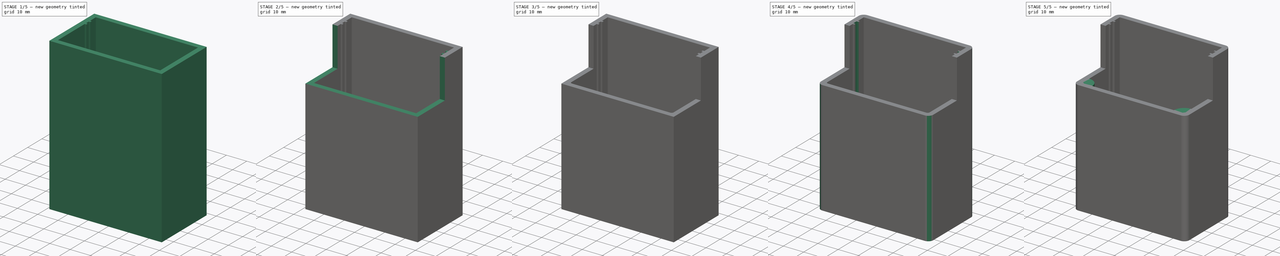
[diagram: build sequence overview — one tinted view per stage of 5, left to right]
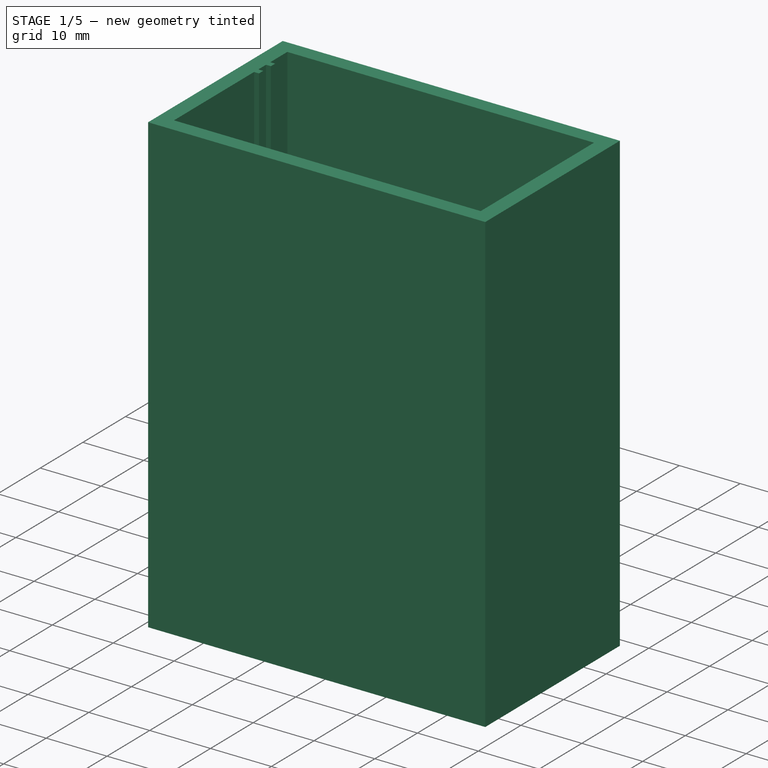
[diagram: stage 1 of 5 — iso view after this stage's code; geometry added in this stage tinted green]
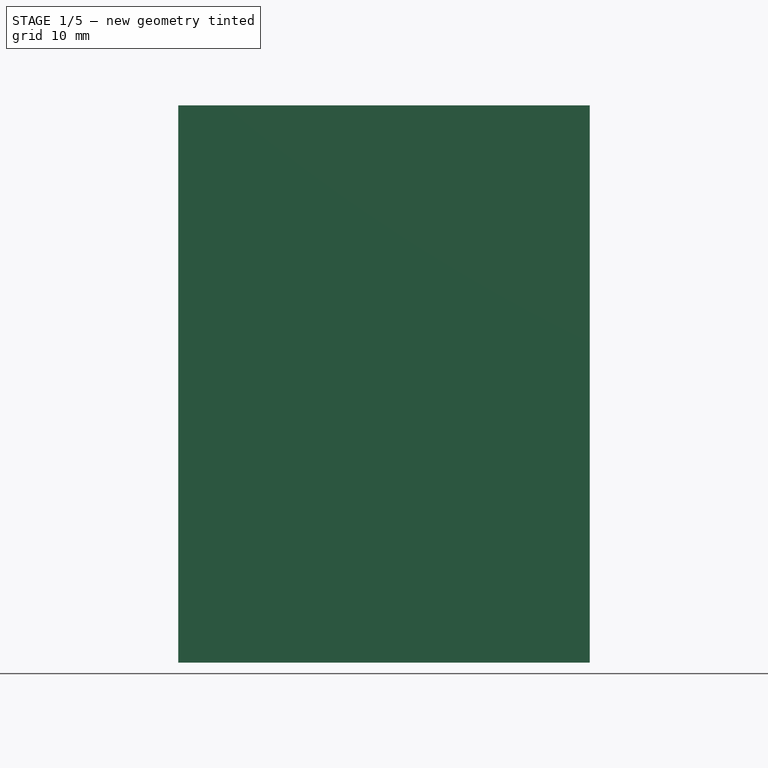
[diagram: stage 1 of 5 — front view after this stage's code; geometry added in this stage tinted green]
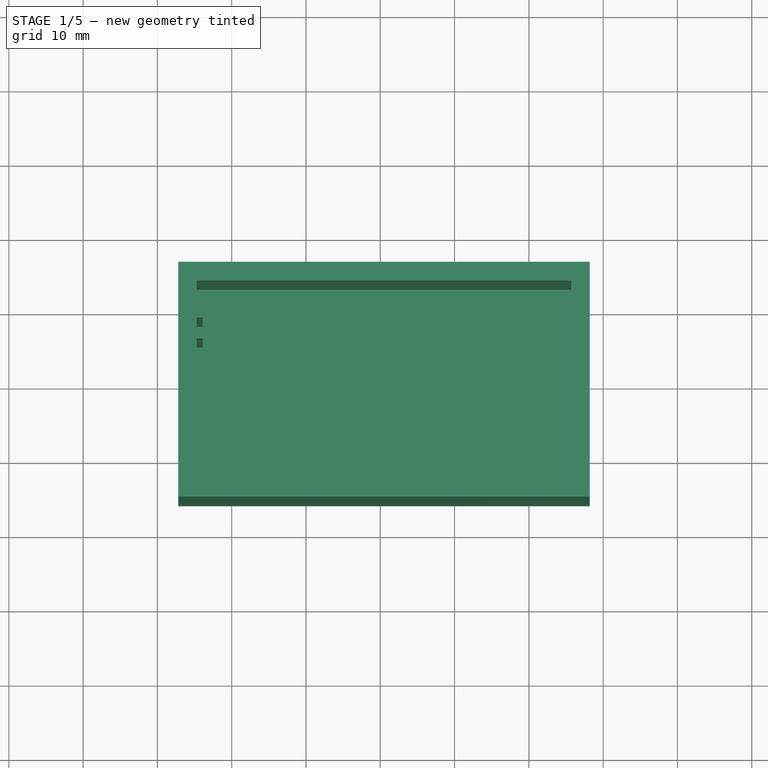
[diagram: stage 1 of 5 — top view after this stage's code; geometry added in this stage tinted green]
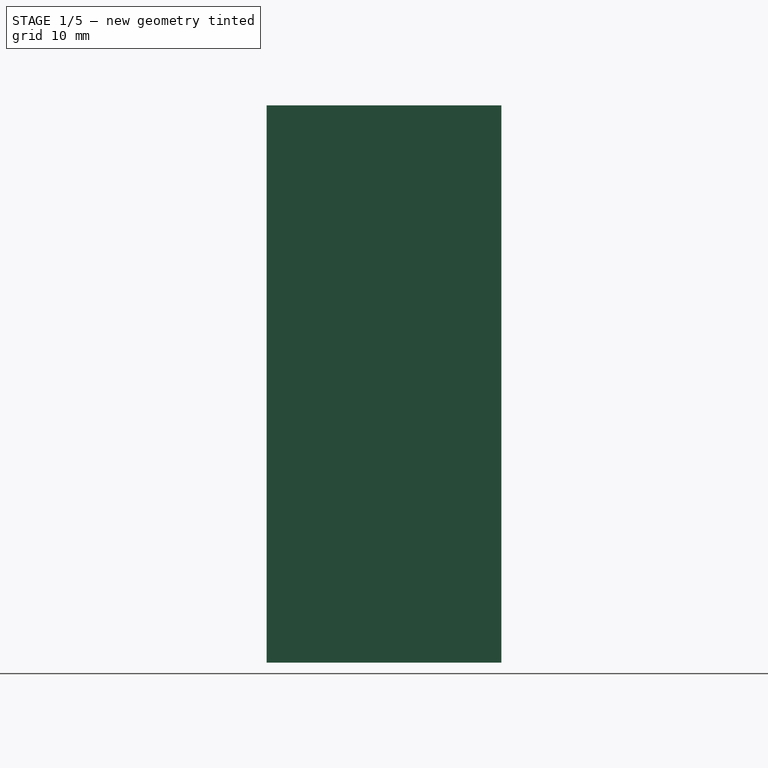
[diagram: stage 1 of 5 — right view after this stage's code; geometry added in this stage tinted green]
FCSTD DOCUMENT  (FreeCAD 0.19R24291 (Git))
Label: debug_box_base_1
License: All rights reserved
LicenseURL: http://en.wikipedia.org/wiki/All_rights_reserved
objects: Sketcher::SketchObject×8, PartDesign::Fillet×5, PartDesign::Pad×4, PartDesign::Pocket×4, PartDesign::Chamfer×2, PartDesign::Body×1
note: 39 computed .brp shape members not serialized (recipe doc carries the construction recipe); baked Part::Feature solids carry a one-line shape summary decoded from their .brp

FEATURE [Sketcher::SketchObject] Sketch
  FullyConstrained = true
  MapMode = 5
  Support = -> [XY_Plane]
  sketch-geometry (4):
    g0: LineSegment StartX=-27.2 StartY=15.8 StartZ=0 EndX=28.2 EndY=15.8 EndZ=0
    g1: LineSegment StartX=28.2 StartY=15.8 StartZ=0 EndX=28.2 EndY=-15.8 EndZ=0
    g2: LineSegment StartX=28.2 StartY=-15.8 StartZ=0 EndX=-27.2 EndY=-15.8 EndZ=0
    g3: LineSegment StartX=-27.2 StartY=-15.8 StartZ=0 EndX=-27.2 EndY=15.8 EndZ=0
  constraints (12):
    c: Coincident(g0,g1)
    c: Coincident(g1,g2)
    c: Coincident(g2,g3)
    c: Coincident(g3,g0)
    c: Horizontal(g0)
    c: Horizontal(g2)
    c: Vertical(g1)
    c: Vertical(g3)
    c: DistanceX(g0,g0) = 55.4
    c: DistanceY(g3,g3) = 31.6
    c: DistanceY(g-1,g0) = 15.8
    c: DistanceX(g0,g-1) = 27.2
FEATURE [PartDesign::Pad] Pad
  Direction = (1,1,1)
  Length = 75
  Length2 = 100
  Profile = -> Sketch
  Type = 0
FEATURE [Sketcher::SketchObject] Sketch001
  ExternalGeometry = -> [Pad]
  FullyConstrained = true
  MapMode = 5
  Placement = pos=(0,0,75) rot=(0,0,1;0rad)
  Support = -> [Pad]
  sketch-geometry (4):
    g0: LineSegment StartX=-24.7 StartY=13.3 StartZ=0 EndX=25.7 EndY=13.3 EndZ=0
    g1: LineSegment StartX=25.7 StartY=13.3 StartZ=0 EndX=25.7 EndY=-13.3 EndZ=0
    g2: LineSegment StartX=25.7 StartY=-13.3 StartZ=0 EndX=-24.7 EndY=-13.3 EndZ=0
    g3: LineSegment StartX=-24.7 StartY=-13.3 StartZ=0 EndX=-24.7 EndY=13.3 EndZ=0
  constraints (12):
    c: Coincident(g0,g1)
    c: Coincident(g1,g2)
    c: Coincident(g2,g3)
    c: Coincident(g3,g0)
    c: Horizontal(g0)
    c: Horizontal(g2)
    c: Vertical(g1)
    c: Vertical(g3)
    c: DistanceX(g-4,g0) = 2.5
    c: DistanceY(g0,g-4) = 2.5
    c: DistanceY(g-3,g1) = 2.5
    c: DistanceX(g1,g-3) = 2.5
FEATURE [PartDesign::Pocket] Pocket
  BaseFeature = -> Pad
  Length = 72.5
  Length2 = 100
  Profile = -> Sketch001
  Type = 0
FEATURE [Sketcher::SketchObject] Sketch002
  ExternalGeometry = -> [Pocket]
  FullyConstrained = true
  MapMode = 5
  Placement = pos=(-24.7,0,0) rot=(0.57735,0.57735,0.57735;2.0944rad)
  Support = -> [Pocket]
  sketch-geometry (8):
    g0: LineSegment StartX=8.3 StartY=0 StartZ=0 EndX=9.3 EndY=0 EndZ=0
    g1: LineSegment StartX=9.3 StartY=0 StartZ=0 EndX=9.3 EndY=75 EndZ=0
    g2: LineSegment StartX=9.3 StartY=75 StartZ=0 EndX=8.3 EndY=75 EndZ=0
    g3: LineSegment StartX=8.3 StartY=75 StartZ=0 EndX=8.3 EndY=0 EndZ=0
    g4: LineSegment StartX=5.5 StartY=0 StartZ=0 EndX=6.5 EndY=0 EndZ=0
    g5: LineSegment StartX=6.5 StartY=0 StartZ=0 EndX=6.5 EndY=75 EndZ=0
    g6: LineSegment StartX=6.5 StartY=75 StartZ=0 EndX=5.5 EndY=75 EndZ=0
    g7: LineSegment StartX=5.5 StartY=75 StartZ=0 EndX=5.5 EndY=0 EndZ=0
  constraints (24):
    c: Coincident(g0,g1)
    c: Coincident(g1,g2)
    c: Coincident(g2,g3)
    c: Coincident(g3,g0)
    c: Horizontal(g0)
    c: Horizontal(g2)
    c: Vertical(g1)
    c: Vertical(g3)
    c: PointOnObject(g0,g-1)
    c: Coincident(g4,g5)
    c: Coincident(g5,g6)
    c: Coincident(g6,g7)
    c: Coincident(g7,g4)
    c: Horizontal(g4)
    c: Horizontal(g6)
    c: Vertical(g5)
    c: Vertical(g7)
    c: PointOnObject(g4,g-1)
    c: DistanceX(g2,g2) = 1
    c: DistanceX(g6,g6) = 1
    c: DistanceX(g2,g-3) = 5
    c: DistanceY(g1,g-3) = 0
    c: DistanceY(g5,g2) = 0
    c: DistanceX(g5,g2) = 1.8
FEATURE [PartDesign::Pad] Pad001
  BaseFeature = -> Pocket
  Direction = (1,1,1)
  Length = 0.8
  Length2 = 100
  Profile = -> Sketch002
  Type = 0
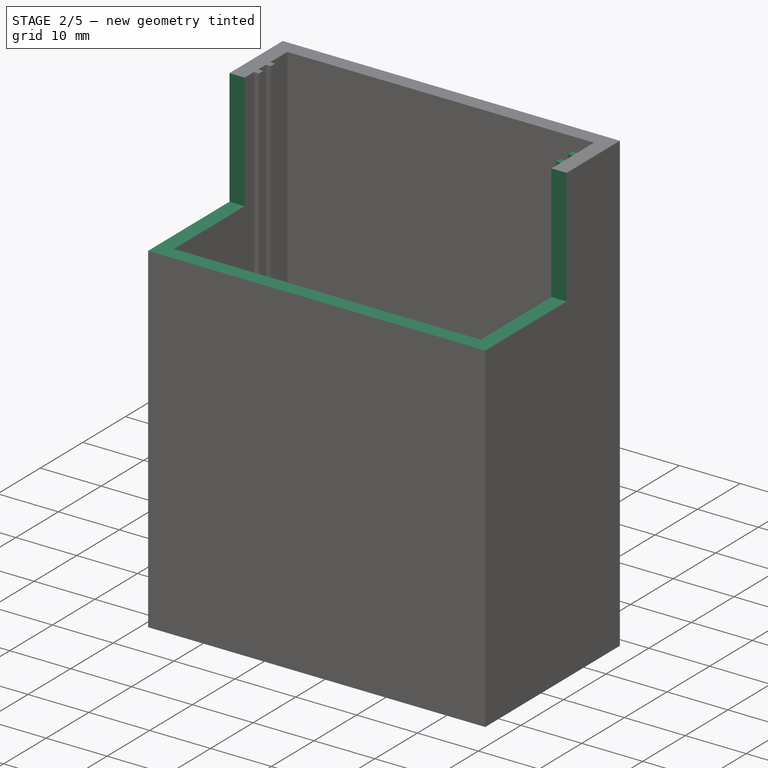
[diagram: stage 2 of 5 — iso view after this stage's code; geometry added in this stage tinted green]
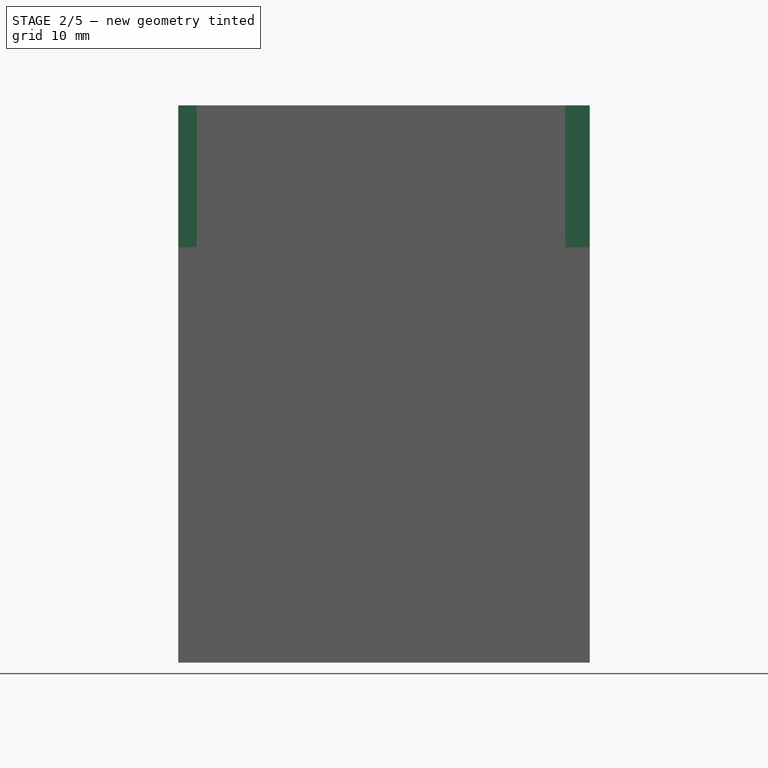
[diagram: stage 2 of 5 — front view after this stage's code; geometry added in this stage tinted green]
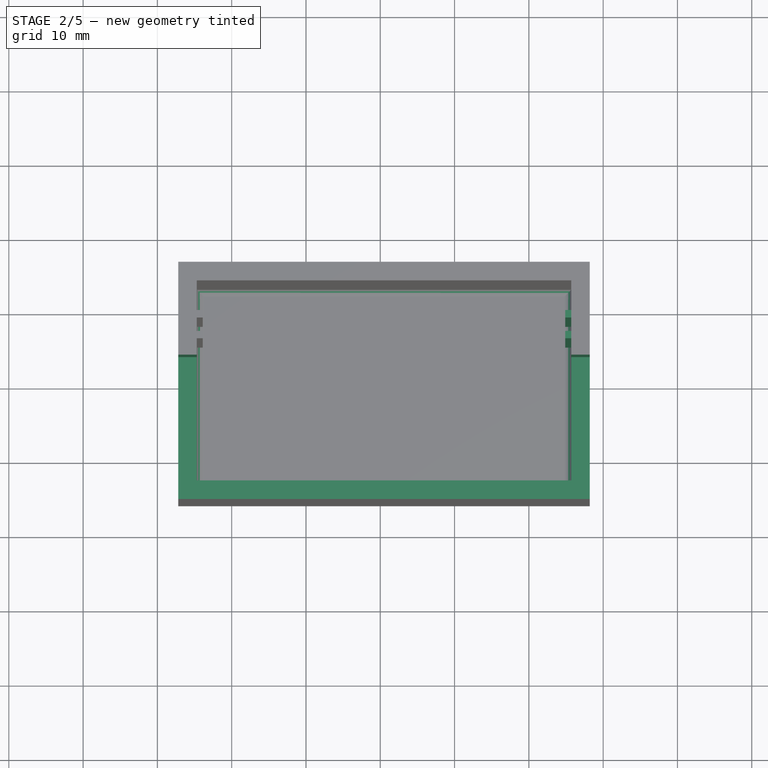
[diagram: stage 2 of 5 — top view after this stage's code; geometry added in this stage tinted green]
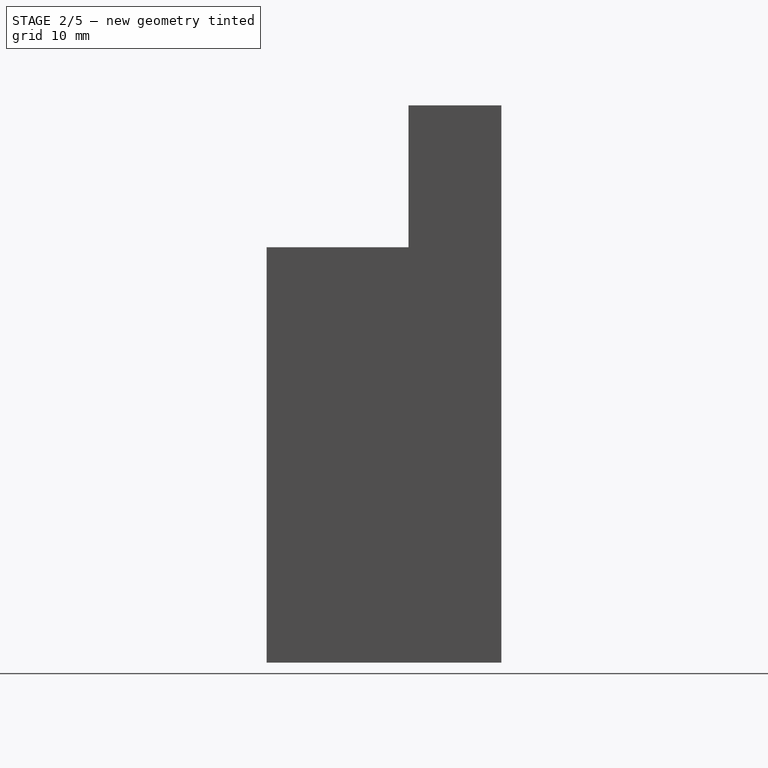
[diagram: stage 2 of 5 — right view after this stage's code; geometry added in this stage tinted green]
FEATURE [Sketcher::SketchObject] Sketch003
  ExternalGeometry = -> [Pad001]
  FullyConstrained = true
  MapMode = 5
  Placement = pos=(25.7,0,0) rot=(0.57735,-0.57735,-0.57735;2.0944rad)
  Support = -> [Pad001]
  sketch-geometry (8):
    g0: LineSegment StartX=-9.3 StartY=2.5 StartZ=0 EndX=-8.3 EndY=2.5 EndZ=0
    g1: LineSegment StartX=-8.3 StartY=2.5 StartZ=0 EndX=-8.3 EndY=75 EndZ=0
    g2: LineSegment StartX=-8.3 StartY=75 StartZ=0 EndX=-9.3 EndY=75 EndZ=0
    g3: LineSegment StartX=-9.3 StartY=75 StartZ=0 EndX=-9.3 EndY=2.5 EndZ=0
    g4: LineSegment StartX=-6.5 StartY=2.5 StartZ=0 EndX=-5.5 EndY=2.5 EndZ=0
    g5: LineSegment StartX=-5.5 StartY=2.5 StartZ=0 EndX=-5.5 EndY=75 EndZ=0
    g6: LineSegment StartX=-5.5 StartY=75 StartZ=0 EndX=-6.5 EndY=75 EndZ=0
    g7: LineSegment StartX=-6.5 StartY=75 StartZ=0 EndX=-6.5 EndY=2.5 EndZ=0
  constraints (24):
    c: Coincident(g0,g1)
    c: Coincident(g1,g2)
    c: Coincident(g2,g3)
    c: Coincident(g3,g0)
    c: Horizontal(g0)
    c: Horizontal(g2)
    c: Vertical(g1)
    c: Vertical(g3)
    c: Coincident(g4,g5)
    c: Coincident(g5,g6)
    c: Coincident(g6,g7)
    c: Coincident(g7,g4)
    c: Horizontal(g4)
    c: Horizontal(g6)
    c: Vertical(g5)
    c: Vertical(g7)
    c: DistanceY(g-3,g0) = 0
    c: DistanceY(g-3,g4) = 0
    c: DistanceX(g0,g0) = 1
    c: DistanceX(g4,g4) = 1
    c: DistanceY(g2,g-4) = 0
    c: DistanceY(g6,g-4) = 0
    c: DistanceX(g-4,g1) = 5
    c: DistanceX(g1,g6) = 1.8
FEATURE [PartDesign::Pad] Pad002
  BaseFeature = -> Pad001
  Direction = (1,1,1)
  Length = 0.8
  Length2 = 100
  Profile = -> Sketch003
  Type = 0
FEATURE [Sketcher::SketchObject] Sketch004
  ExternalGeometry = -> [Pad002]
  FullyConstrained = false
  MapMode = 5
  Placement = pos=(28.2,0,0) rot=(0.57735,0.57735,0.57735;2.0944rad)
  Support = -> [Pad002]
  sketch-geometry (4):
    g0: LineSegment StartX=-15.8 StartY=55.9064 StartZ=0 EndX=3.3 EndY=55.9064 EndZ=0
    g1: LineSegment StartX=3.3 StartY=55.9064 StartZ=0 EndX=3.3 EndY=75 EndZ=0
    g2: LineSegment StartX=3.3 StartY=75 StartZ=0 EndX=-15.8 EndY=75 EndZ=0
    g3: LineSegment StartX=-15.8 StartY=75 StartZ=0 EndX=-15.8 EndY=55.9064 EndZ=0
  constraints (11):
    c: Coincident(g0,g1)
    c: Coincident(g1,g2)
    c: Coincident(g2,g3)
    c: Coincident(g3,g0)
    c: Horizontal(g0)
    c: Horizontal(g2)
    c: Vertical(g1)
    c: Vertical(g3)
    c: DistanceY(g1,g-4) = 0
    c: DistanceX(g1,g-4) = 12.5
    c: DistanceX(g-3,g2) = 0
FEATURE [PartDesign::Pocket] Pocket001
  BaseFeature = -> Pad002
  Length = 56
  Length2 = 100
  Profile = -> Sketch004
  Type = 0
FEATURE [PartDesign::Fillet] Fillet
  Base = -> Pocket001 [Edge63,Edge61,Edge58]
  BaseFeature = -> Pocket001
  Radius = 1
  SupportTransform = false
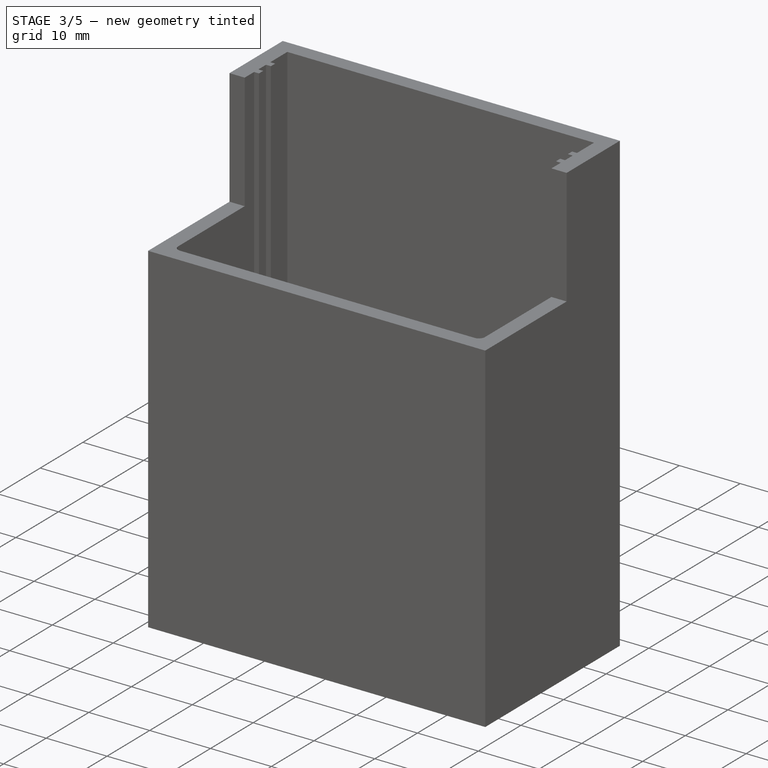
[diagram: stage 3 of 5 — iso view after this stage's code; geometry added in this stage tinted green]
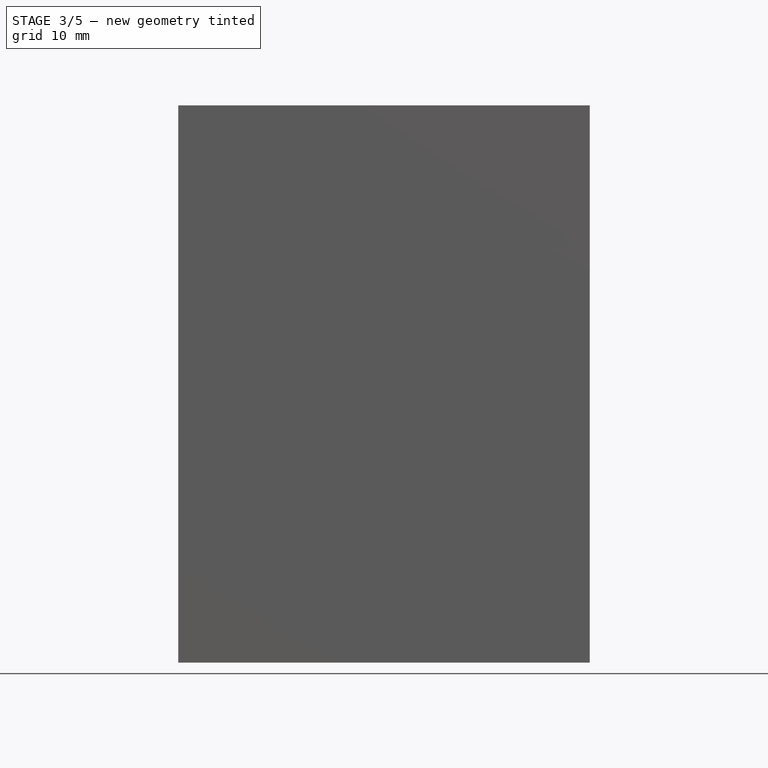
[diagram: stage 3 of 5 — front view after this stage's code; geometry added in this stage tinted green]
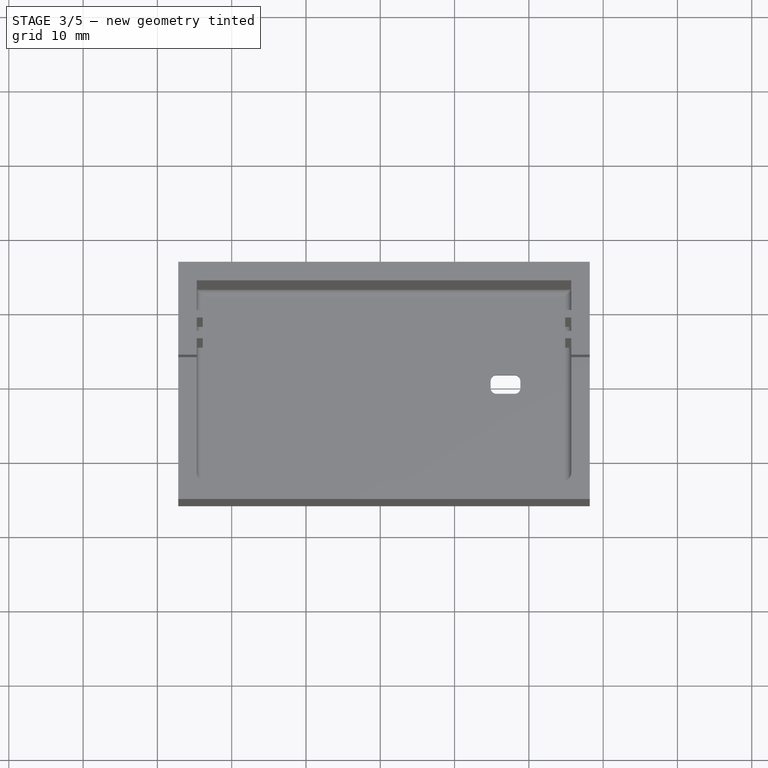
[diagram: stage 3 of 5 — top view after this stage's code; geometry added in this stage tinted green]
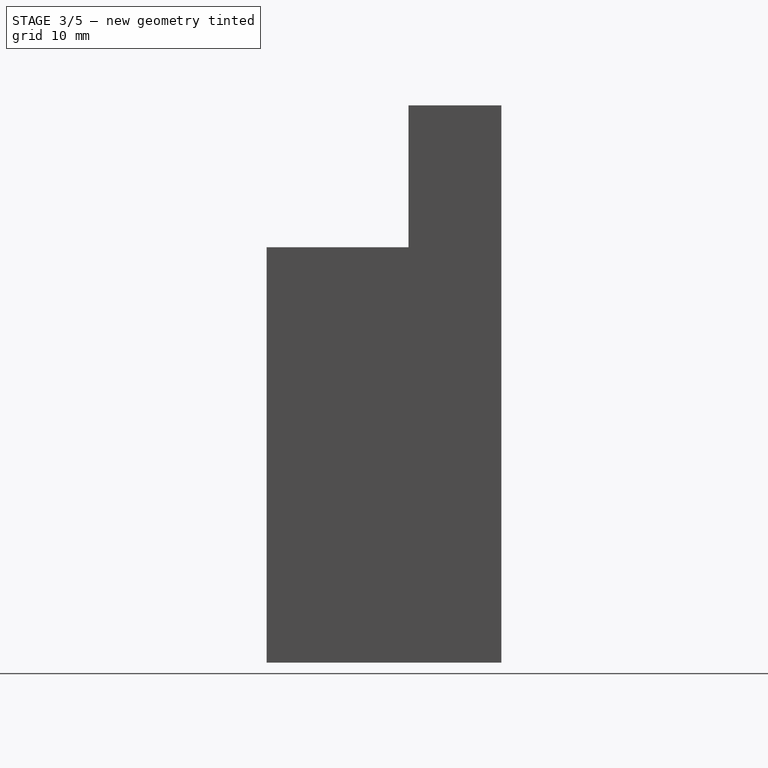
[diagram: stage 3 of 5 — right view after this stage's code; geometry added in this stage tinted green]
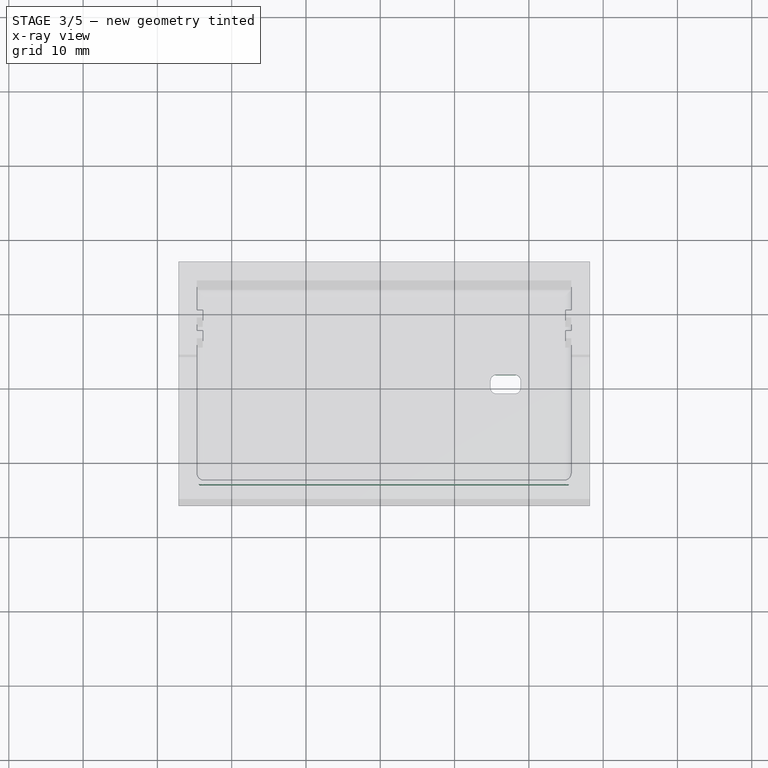
[diagram: stage 3 of 5 — x-ray composite at the top view; earlier geometry ghosted, this stage's added geometry solid]
FEATURE [PartDesign::Fillet] Fillet001
  Base = -> Fillet [Edge36]
  BaseFeature = -> Fillet
  Radius = 1
  SupportTransform = false
FEATURE [Sketcher::SketchObject] Sketch005
  ExternalGeometry = -> [Fillet001]
  FullyConstrained = false
  MapMode = 5
  Placement = pos=(0,0,0) rot=(1,0,0;3.14159rad)
  Support = -> [Fillet001]
  sketch-geometry (4):
    g0: LineSegment StartX=14.8587 StartY=0.7 StartZ=0 EndX=18.8587 EndY=0.7 EndZ=0
    g1: LineSegment StartX=18.8587 StartY=0.7 StartZ=0 EndX=18.8587 EndY=-1.8 EndZ=0
    g2: LineSegment StartX=18.8587 StartY=-1.8 StartZ=0 EndX=14.8587 EndY=-1.8 EndZ=0
    g3: LineSegment StartX=14.8587 StartY=-1.8 StartZ=0 EndX=14.8587 EndY=0.7 EndZ=0
  constraints (11):
    c: Coincident(g0,g1)
    c: Coincident(g1,g2)
    c: Coincident(g2,g3)
    c: Coincident(g3,g0)
    c: Horizontal(g2)
    c: Vertical(g1)
    c: Vertical(g3)
    c: DistanceY(g-3,g1) = 14
    c: Horizontal(g0)
    c: DistanceY(g1,g1) = 2.5
    c: DistanceX(g0,g0) = 4
FEATURE [PartDesign::Pocket] Pocket002
  BaseFeature = -> Fillet001
  Length = 4
  Length2 = 100
  Profile = -> Sketch005
  Type = 0
FEATURE [PartDesign::Fillet] Fillet002
  Base = -> Pocket002 [Edge110,Edge112,Edge107,Edge108]
  BaseFeature = -> Pocket002
  Radius = 0.75
  SupportTransform = false
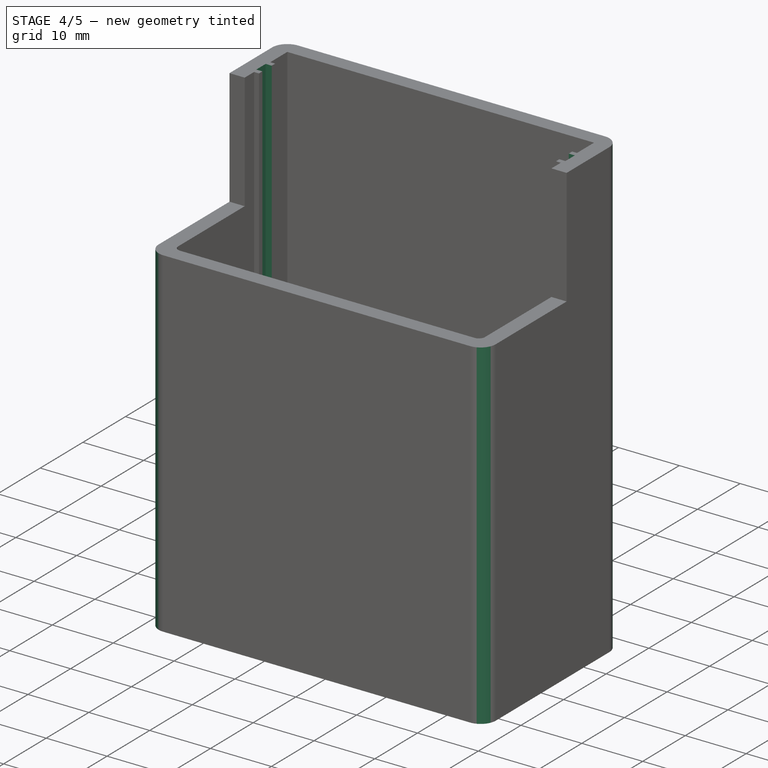
[diagram: stage 4 of 5 — iso view after this stage's code; geometry added in this stage tinted green]
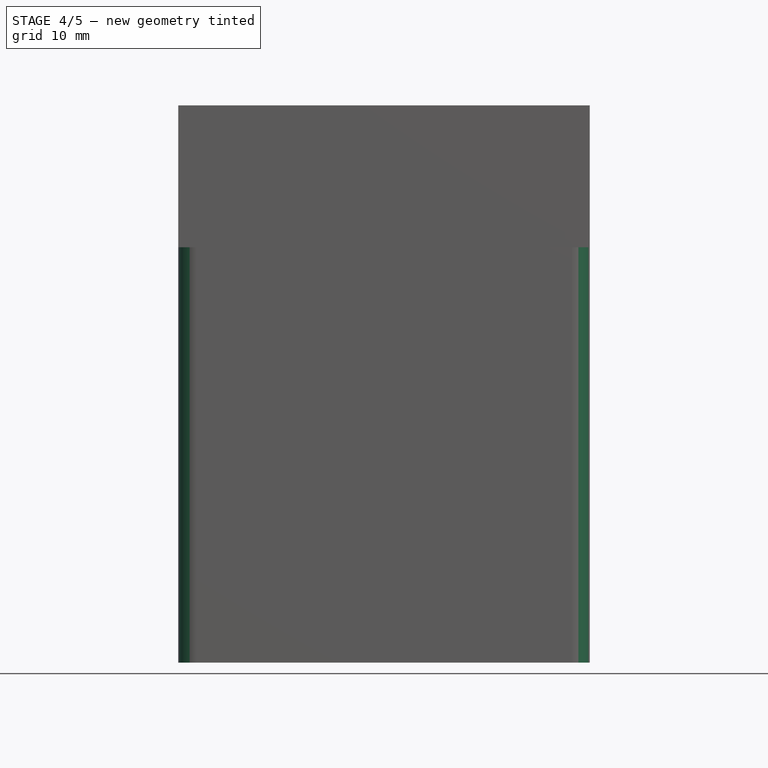
[diagram: stage 4 of 5 — front view after this stage's code; geometry added in this stage tinted green]
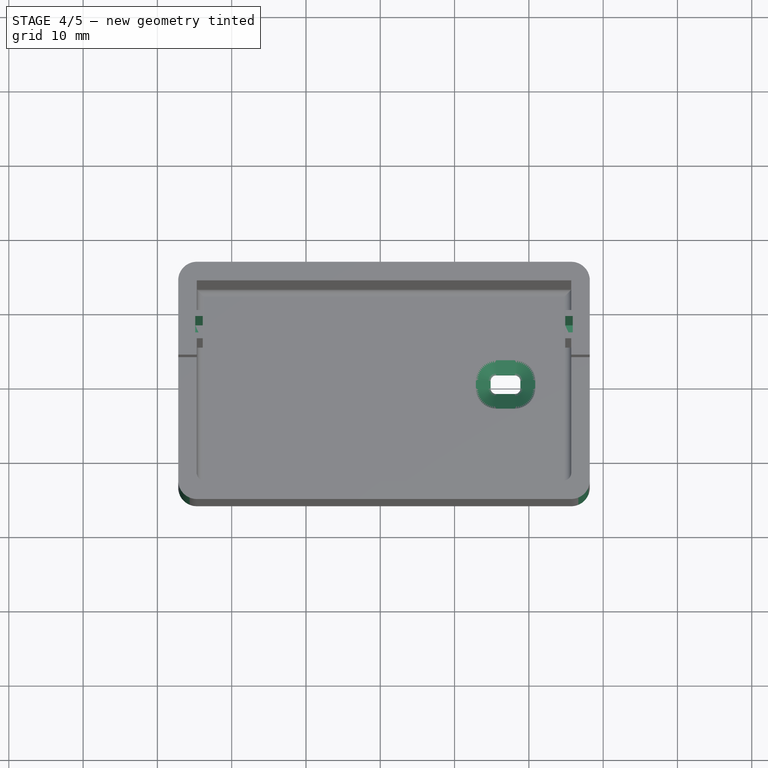
[diagram: stage 4 of 5 — top view after this stage's code; geometry added in this stage tinted green]
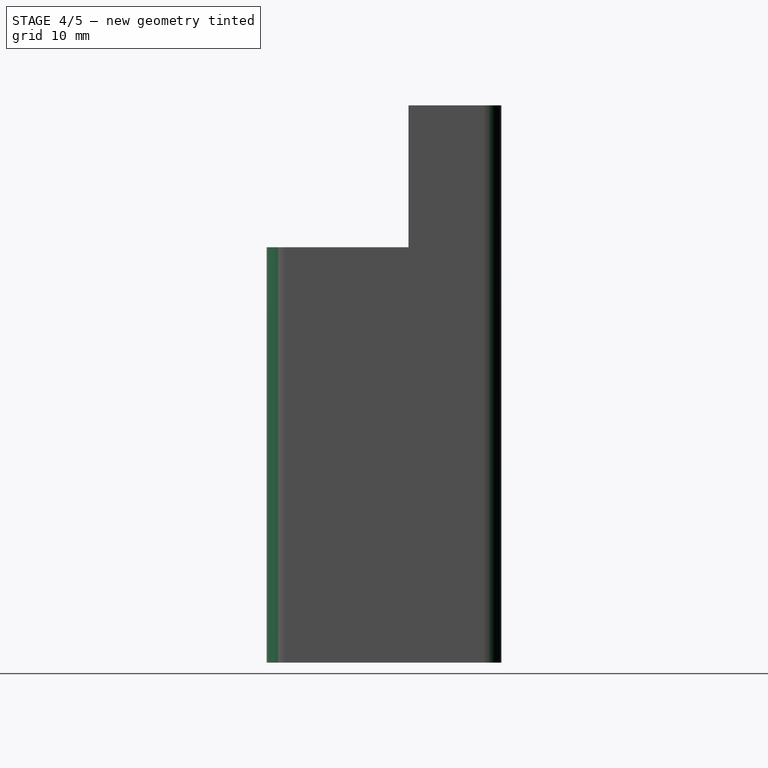
[diagram: stage 4 of 5 — right view after this stage's code; geometry added in this stage tinted green]
FEATURE [PartDesign::Chamfer] Chamfer
  Angle = 45
  Base = -> Fillet002 [Edge4]
  BaseFeature = -> Fillet002
  ChamferType = 0
  FlipDirection = false
  Size = 2
  Size2 = 1
  SupportTransform = false
FEATURE [PartDesign::Fillet] Fillet003
  Base = -> Chamfer [Edge153,Edge151,Edge154,Edge152]
  BaseFeature = -> Chamfer
  Radius = 2.5
  SupportTransform = false
FEATURE [Sketcher::SketchObject] Sketch006
  ExternalGeometry = -> [Fillet003]
  FullyConstrained = true
  MapMode = 5
  Placement = pos=(0,0,75) rot=(0,0,1;0rad)
  Support = -> [Fillet003]
  sketch-geometry (8):
    g0: LineSegment StartX=-23.9 StartY=6.3 StartZ=0 EndX=-24.9 EndY=6.3 EndZ=0
    g1: LineSegment StartX=-24.9 StartY=6.3 StartZ=0 EndX=-24.9 EndY=8.5 EndZ=0
    g2: LineSegment StartX=-24.9 StartY=8.5 StartZ=0 EndX=-23.9 EndY=8.5 EndZ=0
    g3: LineSegment StartX=-23.9 StartY=8.5 StartZ=0 EndX=-23.9 EndY=6.3 EndZ=0
    g4: LineSegment StartX=24.9 StartY=8.5 StartZ=0 EndX=25.9 EndY=8.5 EndZ=0
    g5: LineSegment StartX=25.9 StartY=8.5 StartZ=0 EndX=25.9 EndY=6.3 EndZ=0
    g6: LineSegment StartX=25.9 StartY=6.3 StartZ=0 EndX=24.9 EndY=6.3 EndZ=0
    g7: LineSegment StartX=24.9 StartY=6.3 StartZ=0 EndX=24.9 EndY=8.5 EndZ=0
  constraints (24):
    c: Coincident(g0,g1)
    c: Coincident(g1,g2)
    c: Coincident(g2,g3)
    c: Coincident(g3,g0)
    c: Horizontal(g0)
    c: Horizontal(g2)
    c: Vertical(g1)
    c: Vertical(g3)
    c: Coincident(g4,g5)
    c: Coincident(g5,g6)
    c: Coincident(g6,g7)
    c: Coincident(g7,g4)
    c: Horizontal(g4)
    c: Horizontal(g6)
    c: Vertical(g5)
    c: Vertical(g7)
    c: DistanceX(g-5,g4) = 0
    c: DistanceY(g-5,g4) = 0.2
    c: DistanceY(g6,g-6) = 0.2
    c: DistanceX(g-7,g5) = 0.2
    c: DistanceX(g2,g-3) = 0
    c: DistanceY(g0,g-4) = 0.2
    c: DistanceY(g-3,g2) = 0.2
    c: DistanceX(g1,g-8) = 0.2
FEATURE [PartDesign::Pocket] Pocket003
  BaseFeature = -> Fillet003
  Length = 72.5
  Length2 = 100
  Profile = -> Sketch006
  Type = 0
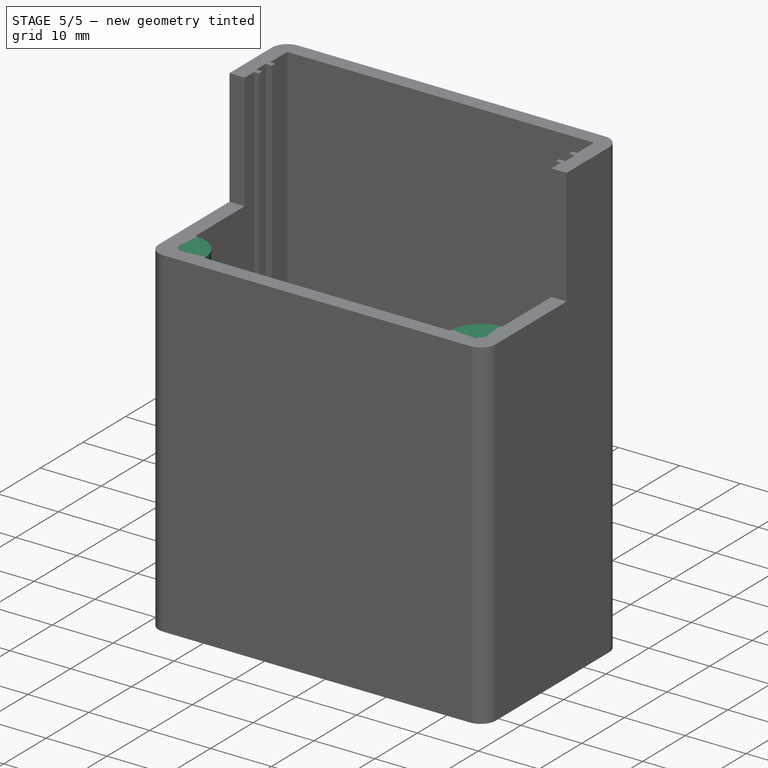
[diagram: stage 5 of 5 — iso view after this stage's code; geometry added in this stage tinted green]
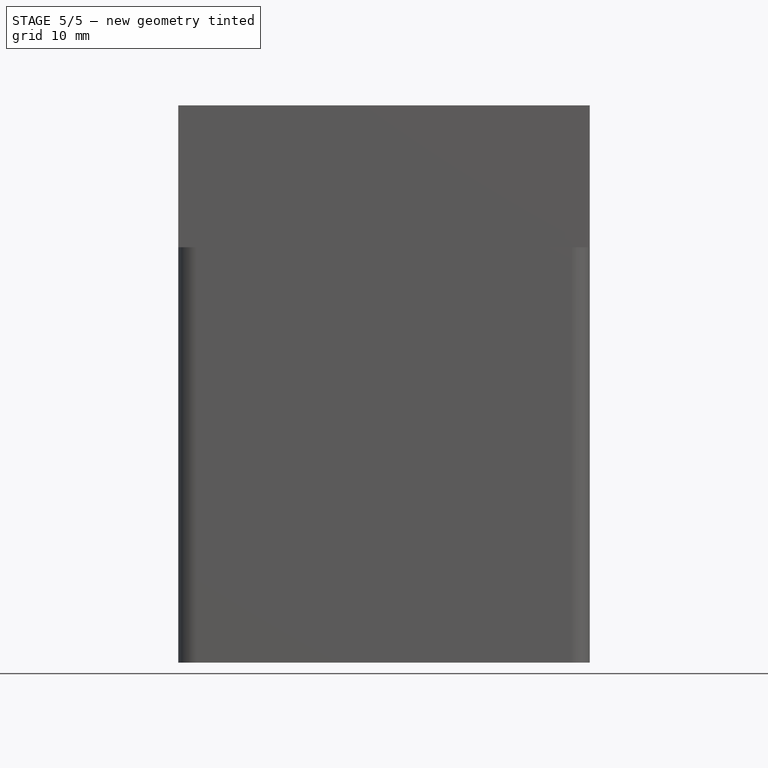
[diagram: stage 5 of 5 — front view after this stage's code; geometry added in this stage tinted green]
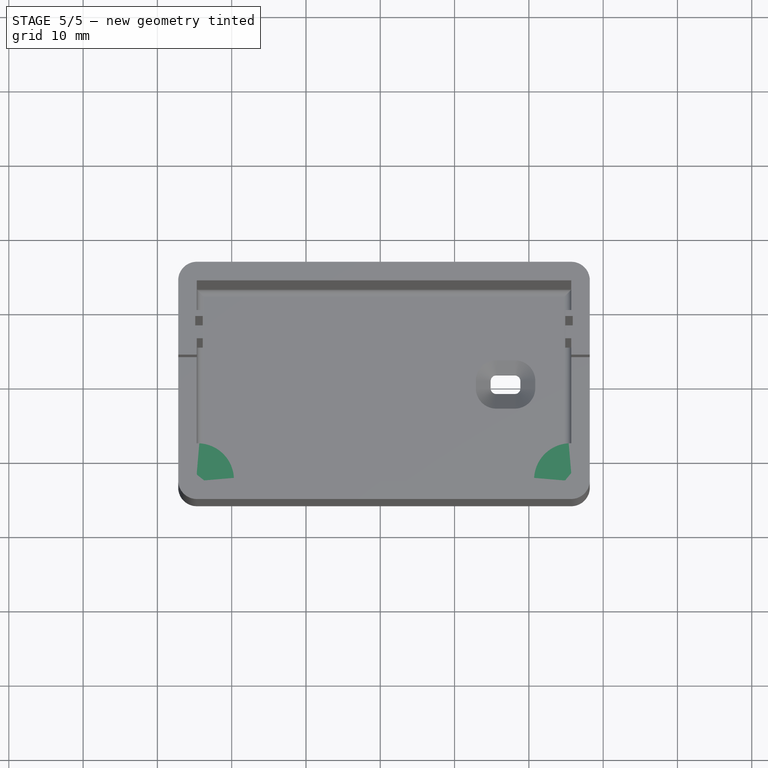
[diagram: stage 5 of 5 — top view after this stage's code; geometry added in this stage tinted green]
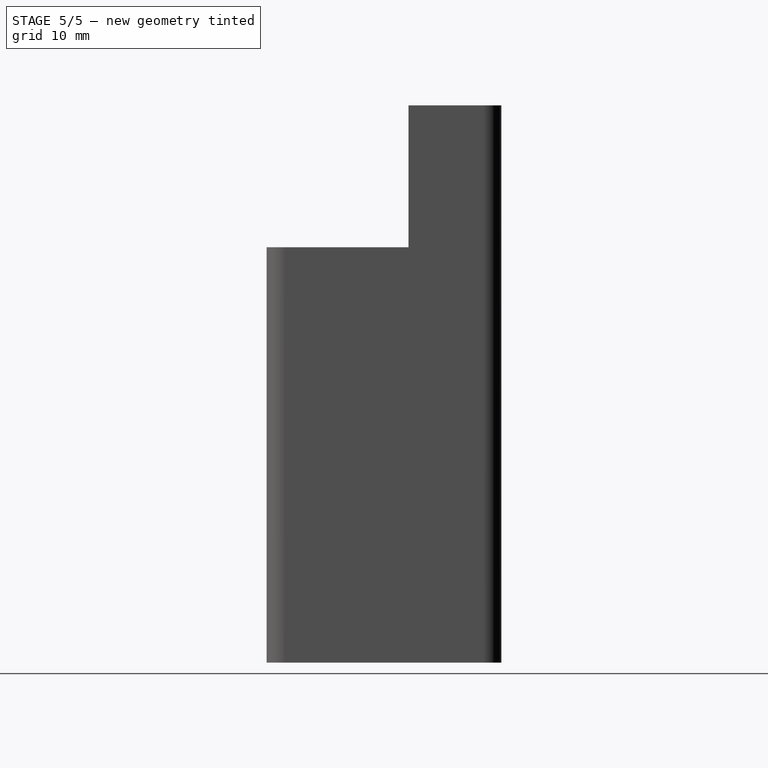
[diagram: stage 5 of 5 — right view after this stage's code; geometry added in this stage tinted green]
FEATURE [Sketcher::SketchObject] Sketch007
  ExternalGeometry = -> [Pocket003]
  FullyConstrained = true
  MapMode = 5
  Placement = pos=(0,0,55.9064) rot=(0,0,1;0rad)
  Support = -> [Pocket003]
  sketch-geometry (8):
    g0: LineSegment StartX=20.7 StartY=-8.3 StartZ=0 EndX=25.7 EndY=-8.3 EndZ=0
    g1: LineSegment StartX=25.7 StartY=-8.3 StartZ=0 EndX=25.7 EndY=-13.3 EndZ=0
    g2: LineSegment StartX=25.7 StartY=-13.3 StartZ=0 EndX=20.7 EndY=-13.3 EndZ=0
    g3: LineSegment StartX=20.7 StartY=-13.3 StartZ=0 EndX=20.7 EndY=-8.3 EndZ=0
    g4: LineSegment StartX=-24.7 StartY=-8.3 StartZ=0 EndX=-19.7 EndY=-8.3 EndZ=0
    g5: LineSegment StartX=-19.7 StartY=-8.3 StartZ=0 EndX=-19.7 EndY=-13.3 EndZ=0
    g6: LineSegment StartX=-19.7 StartY=-13.3 StartZ=0 EndX=-24.7 EndY=-13.3 EndZ=0
    g7: LineSegment StartX=-24.7 StartY=-13.3 StartZ=0 EndX=-24.7 EndY=-8.3 EndZ=0
  constraints (24):
    c: Coincident(g0,g1)
    c: Coincident(g1,g2)
    c: Coincident(g2,g3)
    c: Coincident(g3,g0)
    c: Horizontal(g0)
    c: Horizontal(g2)
    c: Vertical(g1)
    c: Vertical(g3)
    c: Coincident(g4,g5)
    c: Coincident(g5,g6)
    c: Coincident(g6,g7)
    c: Coincident(g7,g4)
    c: Horizontal(g4)
    c: Horizontal(g6)
    c: Vertical(g5)
    c: Vertical(g7)
    c: Equal(g1,g5)
    c: Equal(g0,g4)
    c: DistanceX(g0,g0) = 5
    c: DistanceY(g3,g3) = 5
    c: DistanceY(g-4,g2) = 0
    c: DistanceX(g1,g-3) = 0
    c: DistanceY(g-4,g6) = 0
    c: DistanceX(g-5,g6) = 0
FEATURE [PartDesign::Pad] Pad003
  BaseFeature = -> Pocket003
  Direction = (1,1,1)
  Length = 10
  Length2 = 100
  Profile = -> Sketch007
  Reversed = true
  Type = 0
FEATURE [PartDesign::Chamfer] Chamfer001
  Angle = 45
  Base = -> Pad003 [Edge204,Edge175]
  BaseFeature = -> Pad003
  ChamferType = 0
  FlipDirection = false
  Size = 4.99
  Size2 = 1
  SupportTransform = false
FEATURE [PartDesign::Fillet] Fillet004
  Base = -> Chamfer001 [Edge9,Edge37]
  BaseFeature = -> Chamfer001
  Radius = 4.9
  SupportTransform = false
FEATURE [PartDesign::Body] Body
  Group = -> [Sketch,Pad,Sketch001,Pocket,Sketch002,Pad001,Sketch003,Pad002,Sketch004,Pocket001,Fillet,Fillet001,Sketch005,Pocket002,Fillet002,Chamfer,Fillet003,Sketch006,Pocket003,Sketch007,Pad003,Chamfer001,Fillet004]
  Origin = -> Origin
  Tip = -> Fillet004
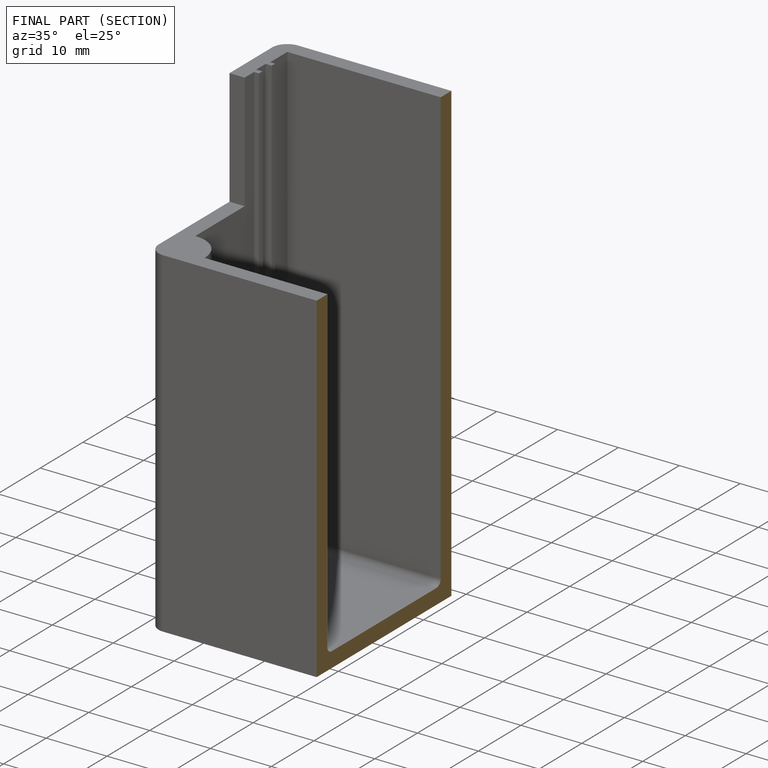
[diagram: finished part — half-section view (interior)]
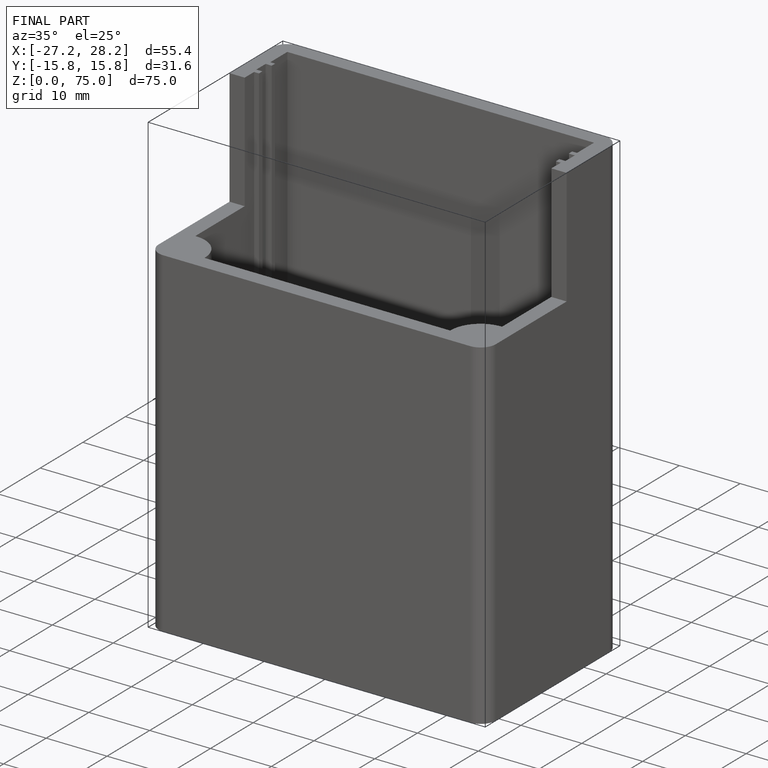
[diagram: finished part — iso view with bounding-box wireframe]
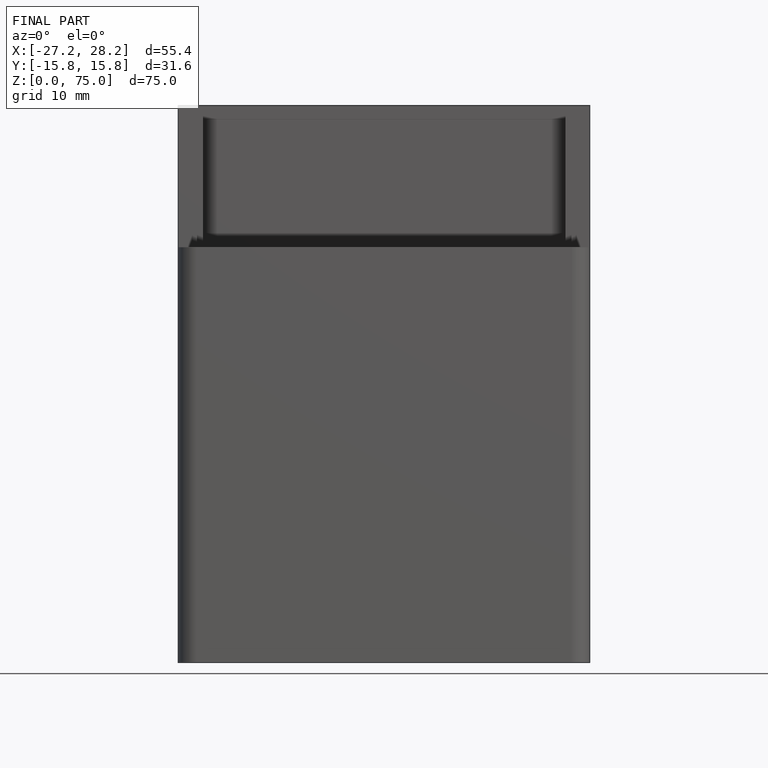
[diagram: finished part — front view with bounding-box wireframe]
